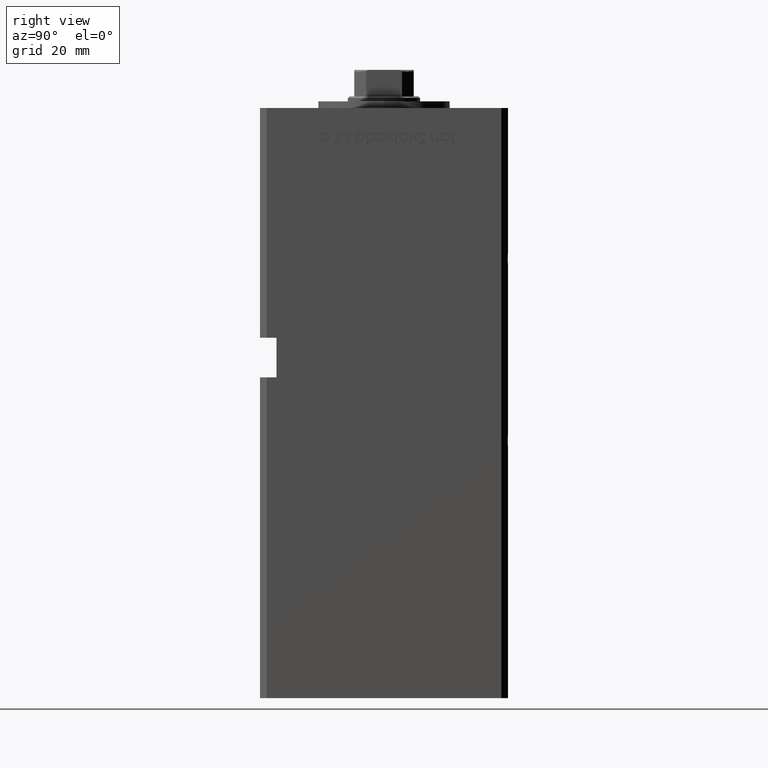
[diagram: clean part render]
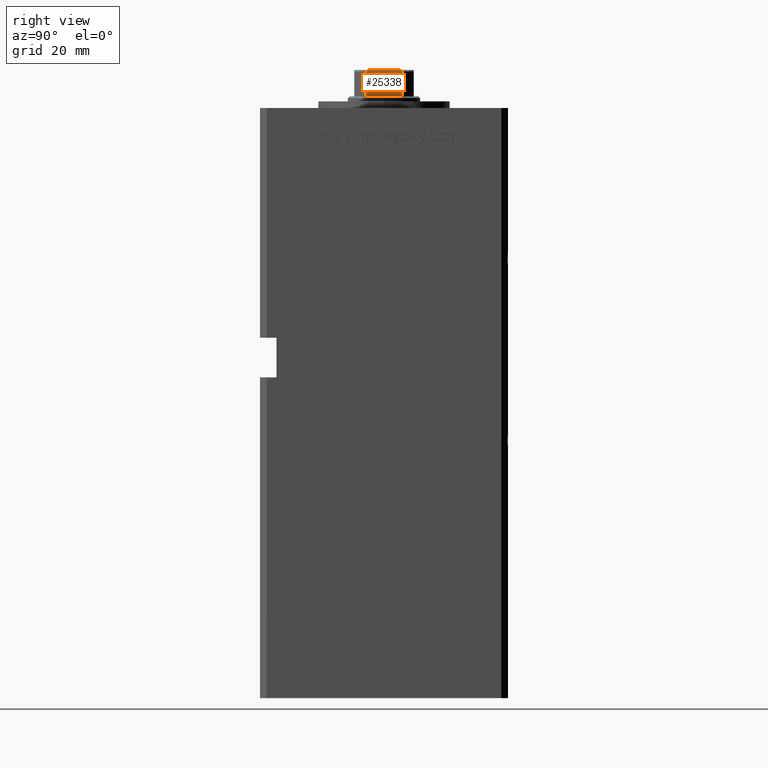
[diagram: same view with one face highlighted and labeled with its STEP entity id]
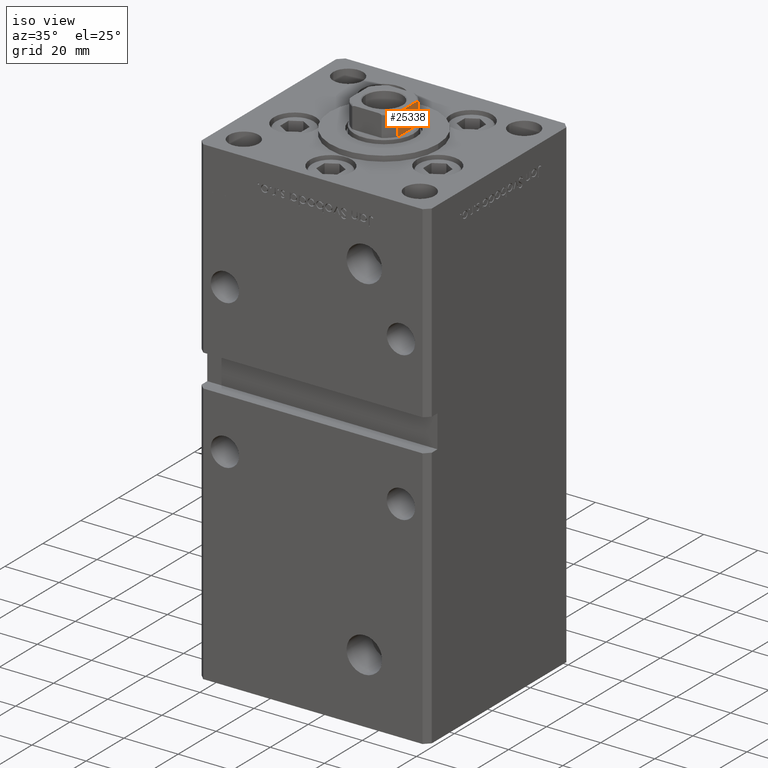
[diagram: same view with one face highlighted and labeled with its STEP entity id]
A machine part, right view. The second image highlights one B-rep face of the part: STEP entity #25338.
A second angle (iso view) of the same face is appended — the face is thin or edge-on in the first view.
In plain terms, the highlighted planar face has unit normal (-1, -0, 0).
Its self-contained STEP definition (entity closure, byte-faithful):
#1535 = EDGE_CURVE ( 'NONE', #30471, #37812, #23582, .T. ) ;
#1550 = CARTESIAN_POINT ( 'NONE',  ( 9.000000000000000000, 8.999999999999998224, 155.7500000000000000 ) ) ;
#3230 = CARTESIAN_POINT ( 'NONE',  ( 8.999999999999996447, -5.408326913195990571, 155.2500000000000000 ) ) ;
#3764 = CARTESIAN_POINT ( 'NONE',  ( 9.000000000000000000, 5.174818616237114810, 155.5825218846533176 ) ) ;
#4047 = CARTESIAN_POINT ( 'NONE',  ( 9.000000000000000000, 5.077896145217237311, 155.6273016776066811 ) ) ;
#7260 = CARTESIAN_POINT ( 'NONE',  ( 9.000000000000001776, -4.569272810556664233, 155.7500000000000568 ) ) ;
#7453 = LINE ( 'NONE', #31435, #36033 ) ;
#7528 = CARTESIAN_POINT ( 'NONE',  ( 9.000000000000001776, -5.173732970196578407, 155.5831808643798979 ) ) ;
#9265 = VERTEX_POINT ( 'NONE', #23650 ) ;
#10345 = ORIENTED_EDGE ( 'NONE', *, *, #21754, .F. ) ;
#11001 = VERTEX_POINT ( 'NONE', #28694 ) ;
#11469 = VECTOR ( 'NONE', #47075, 1000.000000000000000 ) ;
#12429 = EDGE_LOOP ( 'NONE', ( #47935, #26276, #10345, #41224, #45643, #27054 ) ) ;
#13202 = PLANE ( 'NONE',  #19716 ) ;
#14552 = CARTESIAN_POINT ( 'NONE',  ( 9.000000000000001776, -5.335288102212744299, 155.4456905402762459 ) ) ;
#14778 = DIRECTION ( 'NONE',  ( 9.637352644315595243E-17, -1.000000000000000000, 0.000000000000000000 ) ) ;
#17173 = DIRECTION ( 'NONE',  ( -9.637352644315595243E-17, 1.000000000000000000, -0.000000000000000000 ) ) ;
#17586 = EDGE_CURVE ( 'NONE', #46792, #11001, #30073, .T. ) ;
#18567 = CARTESIAN_POINT ( 'NONE',  ( 9.000000000000000000, 8.999999999999998224, 147.7500000000000000 ) ) ;
#18648 = VERTEX_POINT ( 'NONE', #28937 ) ;
#19716 = AXIS2_PLACEMENT_3D ( 'NONE', #46024, #27426, #14778 ) ;
#21249 = CARTESIAN_POINT ( 'NONE',  ( 9.000000000000001776, 5.408326913195987906, 155.3035720727335161 ) ) ;
#21754 = EDGE_CURVE ( 'NONE', #30471, #11001, #44116, .T. ) ;
#23405 = CARTESIAN_POINT ( 'NONE',  ( 8.999999999999996447, -5.408326913195990571, -0.001000000000001000089 ) ) ;
#23582 = LINE ( 'NONE', #18567, #11469 ) ;
#23650 = CARTESIAN_POINT ( 'NONE',  ( 9.000000000000000000, 4.358898943540675752, 155.7500000000000000 ) ) ;
#23684 = CARTESIAN_POINT ( 'NONE',  ( 9.000000000000003553, -4.775913644518299250, 155.7281460743083699 ) ) ;
#23949 = CARTESIAN_POINT ( 'NONE',  ( 9.000000000000001776, -5.297634495023405776, 155.4844228052780295 ) ) ;
#25338 = ADVANCED_FACE ( 'NONE', ( #50053 ), #13202, .F. ) ;
#26276 = ORIENTED_EDGE ( 'NONE', *, *, #17586, .T. ) ;
#27054 = ORIENTED_EDGE ( 'NONE', *, *, #33430, .T. ) ;
#27426 = DIRECTION ( 'NONE',  ( -1.000000000000000000, -9.637352644315595243E-17, 0.000000000000000000 ) ) ;
#27703 = DIRECTION ( 'NONE',  ( -0.000000000000000000, -0.000000000000000000, 1.000000000000000000 ) ) ;
#27712 = CARTESIAN_POINT ( 'NONE',  ( 9.000000000000001776, -4.358898943540675752, 155.7500000000000000 ) ) ;
#28527 = CARTESIAN_POINT ( 'NONE',  ( 9.000000000000000000, 4.358898943540675752, 155.7500000000000000 ) ) ;
#28694 = CARTESIAN_POINT ( 'NONE',  ( 8.999999999999996447, -5.408326913195990571, 155.2500000000000000 ) ) ;
#28937 = CARTESIAN_POINT ( 'NONE',  ( 9.000000000000000000, 5.408326913195986130, 155.2500000000000000 ) ) ;
#29077 = CARTESIAN_POINT ( 'NONE',  ( 9.000000000000001776, 4.569278586016984889, 155.7500000000000284 ) ) ;
#30073 = B_SPLINE_CURVE_WITH_KNOTS ( 'NONE', 3,
 ( #27712, #7260, #23684, #40077, #7528, #23949, #14552, #40347, #30976, #3230 ),
 .UNSPECIFIED., .F., .F.,
 ( 4, 2, 2, 2, 4 ),
 ( 8.673617379884035472E-19, 0.0006221106941441024865, 0.0009331660412161544346, 0.001088693714752181439, 0.001244221388288208443 ),
 .UNSPECIFIED. ) ;
#30217 = EDGE_CURVE ( 'NONE', #37812, #18648, #7453, .T. ) ;
#30471 = VERTEX_POINT ( 'NONE', #38100 ) ;
#30976 = CARTESIAN_POINT ( 'NONE',  ( 9.000000000000001776, -5.408326913195986130, 155.3037434673188386 ) ) ;
#31435 = CARTESIAN_POINT ( 'NONE',  ( 9.000000000000000000, 5.408326913195986130, -0.001000000000001000089 ) ) ;
#32564 = CARTESIAN_POINT ( 'NONE',  ( 9.000000000000000000, 4.778533838065919248, 155.7278291476469860 ) ) ;
#33102 = CARTESIAN_POINT ( 'NONE',  ( 9.000000000000000000, 5.335664150027731090, 155.4451843380012974 ) ) ;
#33430 = EDGE_CURVE ( 'NONE', #18648, #9265, #53159, .T. ) ;
#35110 = VECTOR ( 'NONE', #27703, 1000.000000000000000 ) ;
#35450 = DIRECTION ( 'NONE',  ( -0.000000000000000000, -0.000000000000000000, 1.000000000000000000 ) ) ;
#36033 = VECTOR ( 'NONE', #35450, 1000.000000000000000 ) ;
#36492 = CARTESIAN_POINT ( 'NONE',  ( 9.000000000000000000, 5.408326913195986130, 147.7500000000000853 ) ) ;
#36584 = CARTESIAN_POINT ( 'NONE',  ( 9.000000000000000000, 5.408326913195986130, 155.2500000000000000 ) ) ;
#37812 = VERTEX_POINT ( 'NONE', #36492 ) ;
#38100 = CARTESIAN_POINT ( 'NONE',  ( 8.999999999999996447, -5.408326913195990571, 147.7500000000000853 ) ) ;
#38394 = LINE ( 'NONE', #1550, #44207 ) ;
#40077 = CARTESIAN_POINT ( 'NONE',  ( 9.000000000000000000, -5.074490744525476771, 155.6287200784332470 ) ) ;
#40347 = CARTESIAN_POINT ( 'NONE',  ( 9.000000000000001776, -5.390945448132516304, 155.3554816538970442 ) ) ;
#41224 = ORIENTED_EDGE ( 'NONE', *, *, #1535, .T. ) ;
#44116 = LINE ( 'NONE', #23405, #35110 ) ;
#44207 = VECTOR ( 'NONE', #17173, 1000.000000000000000 ) ;
#44660 = CARTESIAN_POINT ( 'NONE',  ( 8.999999999999998224, 5.390954572107325760, 155.3553628521399901 ) ) ;
#45201 = CARTESIAN_POINT ( 'NONE',  ( 9.000000000000000000, 5.298186678102083214, 155.4838781215005099 ) ) ;
#45643 = ORIENTED_EDGE ( 'NONE', *, *, #30217, .T. ) ;
#46024 = CARTESIAN_POINT ( 'NONE',  ( 9.000000000000000000, 8.999999999999998224, 155.7500000000000000 ) ) ;
#46508 = CARTESIAN_POINT ( 'NONE',  ( 9.000000000000001776, -4.358898943540675752, 155.7500000000000000 ) ) ;
#46792 = VERTEX_POINT ( 'NONE', #46508 ) ;
#47075 = DIRECTION ( 'NONE',  ( -9.637352644315595243E-17, 1.000000000000000000, -0.000000000000000000 ) ) ;
#47935 = ORIENTED_EDGE ( 'NONE', *, *, #48527, .F. ) ;
#48527 = EDGE_CURVE ( 'NONE', #46792, #9265, #38394, .T. ) ;
#50053 = FACE_OUTER_BOUND ( 'NONE', #12429, .T. ) ;
#53159 = B_SPLINE_CURVE_WITH_KNOTS ( 'NONE', 3,
 ( #36584, #21249, #44660, #33102, #45201, #3764, #4047, #32564, #29077, #28527 ),
 .UNSPECIFIED., .F., .F.,
 ( 4, 2, 2, 2, 4 ),
 ( 0.000000000000000000, 0.0001582447020887964273, 0.0003164894041775928547, 0.0006329788083552356911, 0.001265957616710524291 ),
 .UNSPECIFIED. ) ;